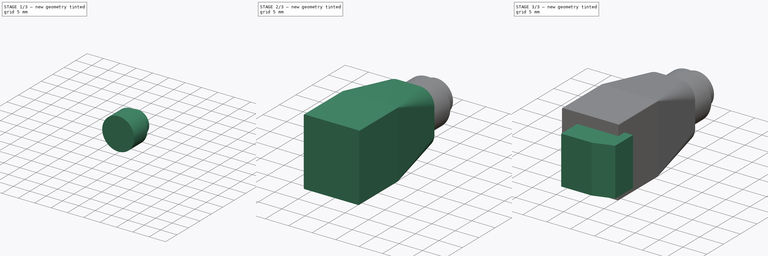
[diagram: build sequence overview — one tinted view per stage of 3, left to right]
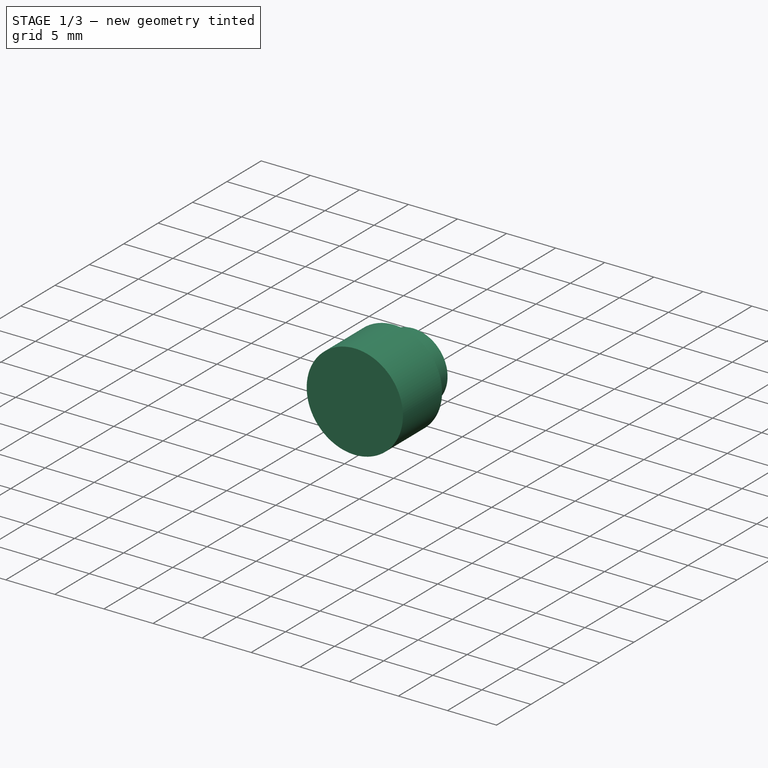
[diagram: stage 1 of 3 — iso view after this stage's code; geometry added in this stage tinted green]
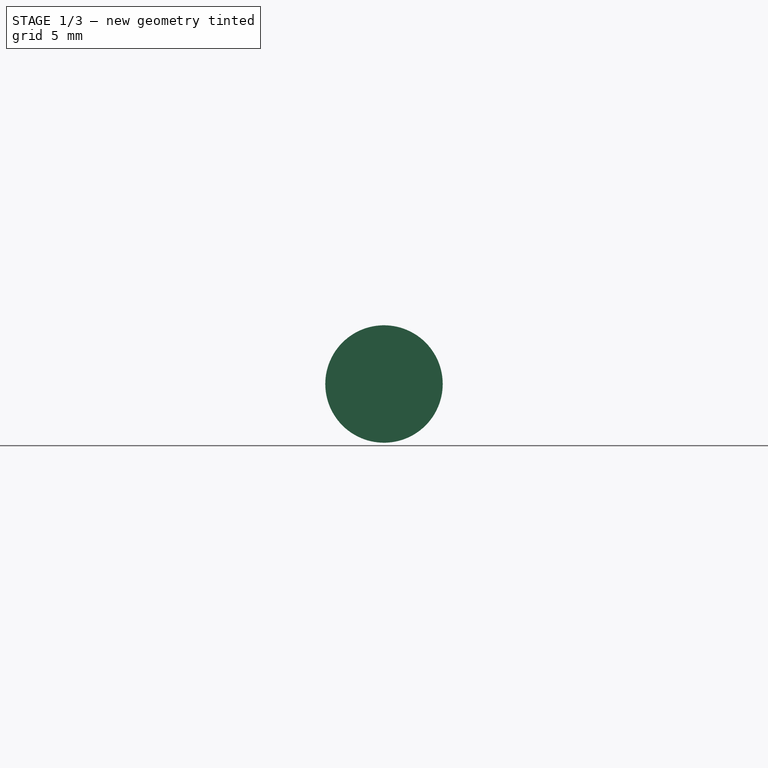
[diagram: stage 1 of 3 — front view after this stage's code; geometry added in this stage tinted green]
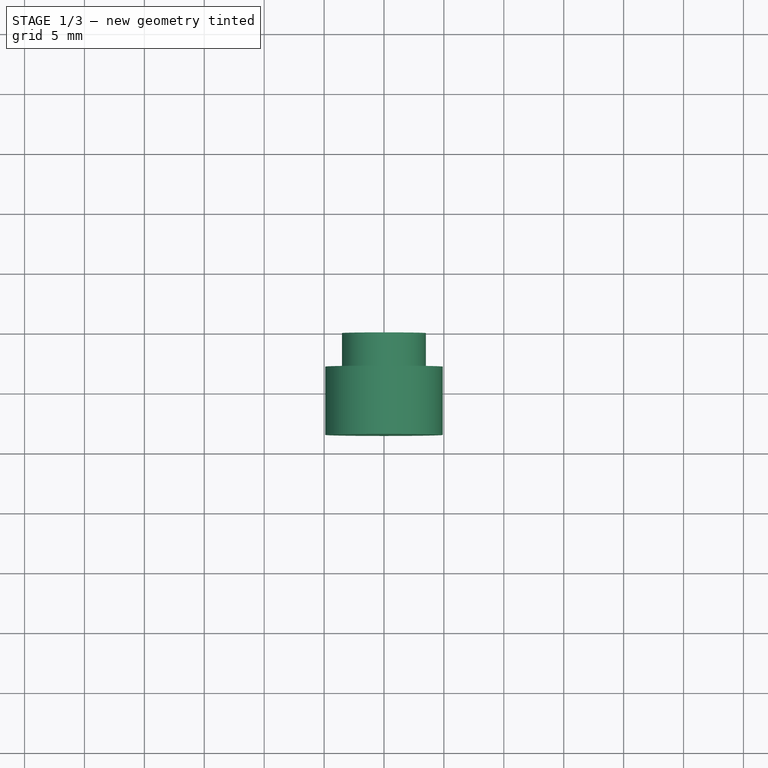
[diagram: stage 1 of 3 — top view after this stage's code; geometry added in this stage tinted green]
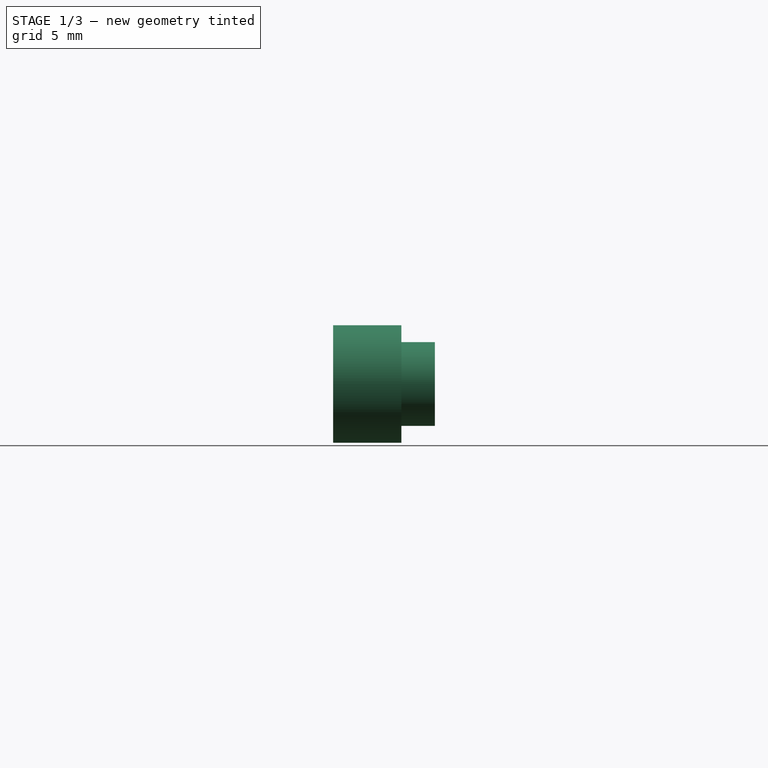
[diagram: stage 1 of 3 — right view after this stage's code; geometry added in this stage tinted green]
FCSTD DOCUMENT  (FreeCAD 0.22R36807 (Git))
Label: 12V DC Adapter Plug
License: Creative Commons Attribution 4.0
LicenseURL: https://creativecommons.org/licenses/by/4.0/
objects: Sketcher::SketchObject×7, PartDesign::Pad×4, PartDesign::AdditiveLoft×2, PartDesign::Body×1
note: 20 computed .brp shape members not serialized (recipe doc carries the construction recipe); baked Part::Feature solids carry a one-line shape summary decoded from their .brp

FEATURE [Sketcher::SketchObject] Sketch
  AttachmentSupport = -> [XZ_Plane]
  FullyConstrained = true
  MapMode = 5
  Placement = pos=(0,0,0) rot=(1,0,0;1.5708rad)
  sketch-geometry (2):
    g0: Circle CenterX=0 CenterY=0 CenterZ=0 NormalX=0 NormalY=0 NormalZ=1 AngleXU=0 Radius=3.5
    g1: Circle CenterX=0 CenterY=0 CenterZ=0 NormalX=0 NormalY=0 NormalZ=1 AngleXU=0 Radius=3.25
  constraints (4):
    c: Radius(g0) = 3.5
    c: Coincident(g0,g-1)
    c: Radius(g1) = 3.25
    c: Coincident(g1,g0)
FEATURE [PartDesign::Pad] Pad  label="Pad1"
  Direction = (0,-1,2e-16)
  Length = 2.8
  Length2 = 10
  Placement = pos=(0,0,0) rot=(1,0,0;1.5708rad)
  Profile = -> Sketch
  ReferenceAxis = -> Sketch [N_Axis]
  Suppressed = false
  Type = 0
FEATURE [Sketcher::SketchObject] Sketch001
  AttachmentSupport = -> [Pad]
  FullyConstrained = true
  MapMode = 5
  Placement = pos=(0,-2.8,6e-16) rot=(1,0,0;1.5708rad)
  sketch-geometry (1):
    g0: Circle CenterX=0 CenterY=0 CenterZ=0 NormalX=0 NormalY=0 NormalZ=1 AngleXU=0 Radius=4.9
  constraints (2):
    c: Radius(g0) = 4.9
    c: Coincident(g0,g-1)
FEATURE [PartDesign::Pad] Pad001  label="Pad2"
  BaseFeature = -> Pad
  Direction = (0,-1,2e-16)
  Length = 5.7
  Length2 = 10
  Placement = pos=(0,0,0) rot=(1,0,0;1.5708rad)
  Profile = -> Sketch001
  ReferenceAxis = -> Sketch001 [N_Axis]
  Suppressed = false
  Type = 0
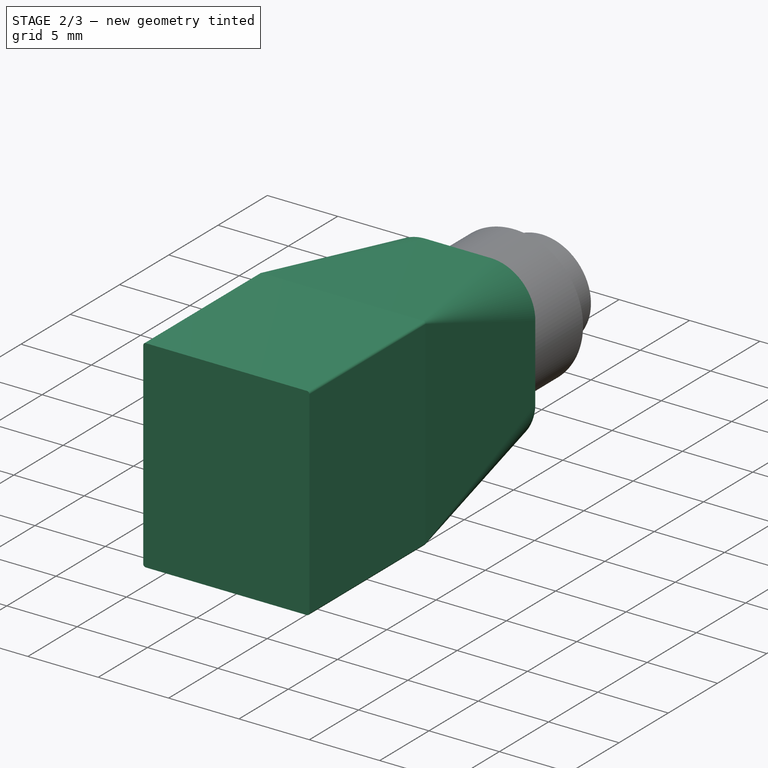
[diagram: stage 2 of 3 — iso view after this stage's code; geometry added in this stage tinted green]
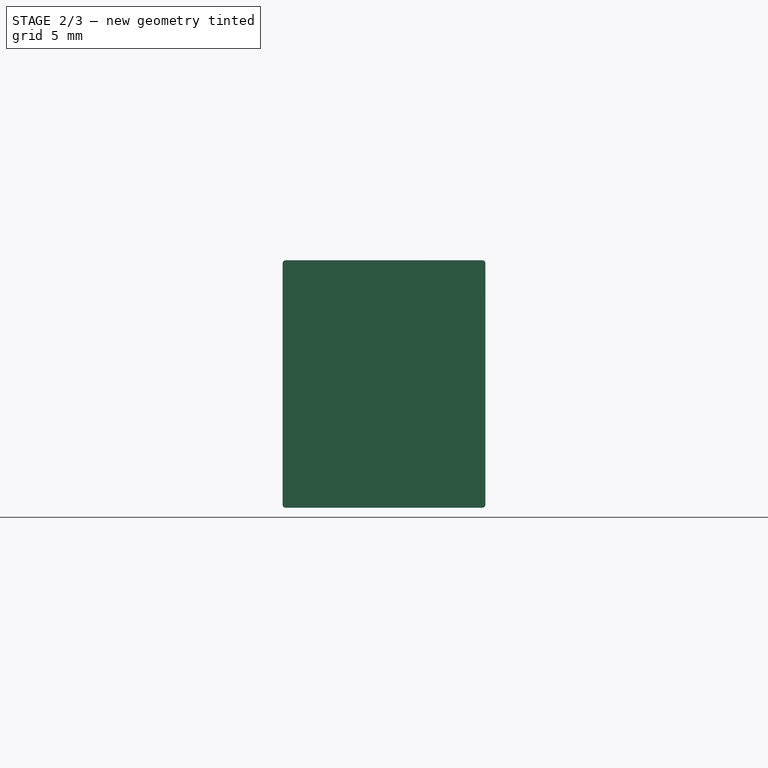
[diagram: stage 2 of 3 — front view after this stage's code; geometry added in this stage tinted green]
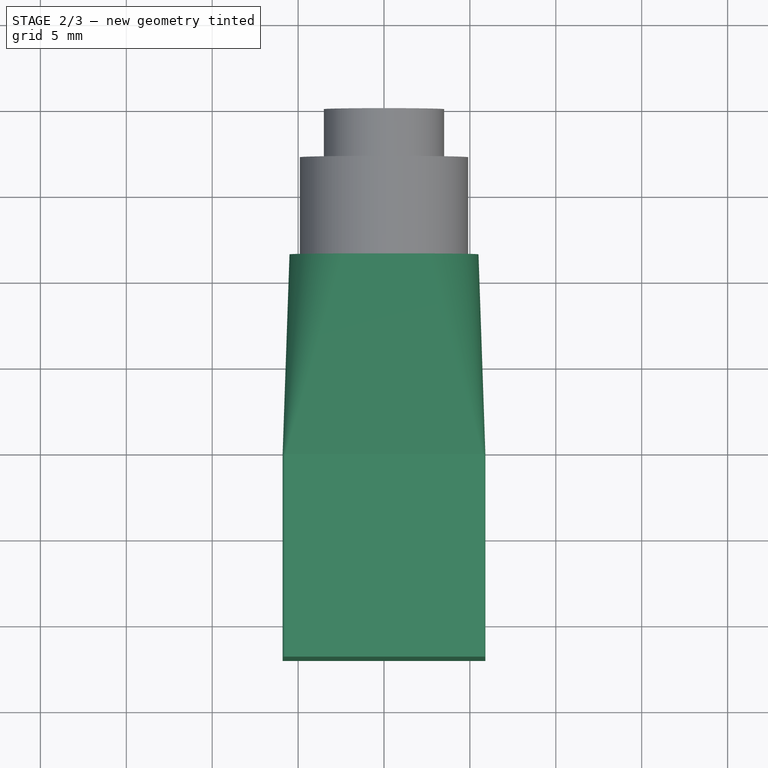
[diagram: stage 2 of 3 — top view after this stage's code; geometry added in this stage tinted green]
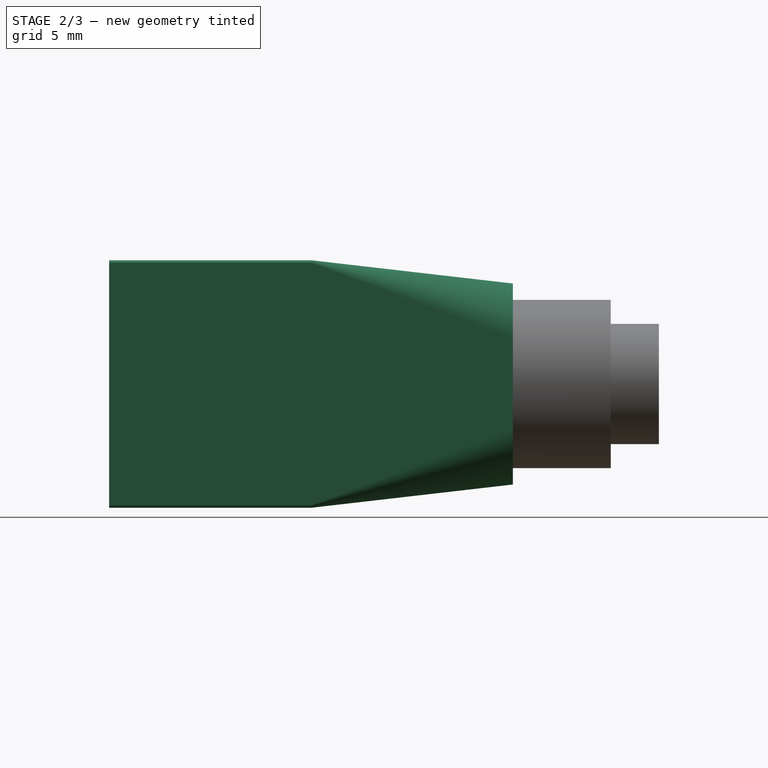
[diagram: stage 2 of 3 — right view after this stage's code; geometry added in this stage tinted green]
FEATURE [Sketcher::SketchObject] Sketch002
  AttachmentOffset = pos=(0,0,8.5) rot=(0,0,1;0rad)
  AttachmentSupport = -> [XZ_Plane]
  FullyConstrained = false
  MapMode = 5
  Placement = pos=(0,-8.5,1.9e-15) rot=(1,0,0;1.5708rad)
  expr: .AttachmentOffset.Base.z = <<Pad1>>.Length + <<Pad2>>.Length
  sketch-geometry (10):
    g0: LineSegment StartX=-5.5 StartY=2.6682 StartZ=0 EndX=-5.5 EndY=-2.6682 EndZ=0
    g1: LineSegment StartX=-2.3182 StartY=-5.85 StartZ=0 EndX=2.3182 EndY=-5.85 EndZ=0
    g2: LineSegment StartX=5.5 StartY=-2.6682 StartZ=0 EndX=5.5 EndY=2.6682 EndZ=0
    g3: LineSegment StartX=2.3182 StartY=5.85 StartZ=0 EndX=-2.3182 EndY=5.85 EndZ=0
    g4: ArcOfCircle CenterX=-2.3182 CenterY=2.6682 CenterZ=0 NormalX=0 NormalY=0 NormalZ=1 AngleXU=0 Radius=3.1818 StartAngle=1.5708 EndAngle=3.14159
    g5: ArcOfCircle CenterX=-2.3182 CenterY=-2.6682 CenterZ=0 NormalX=0 NormalY=0 NormalZ=1 AngleXU=0 Radius=3.1818 StartAngle=3.14159 EndAngle=4.71239
    g6: ArcOfCircle CenterX=2.3182 CenterY=-2.6682 CenterZ=0 NormalX=0 NormalY=0 NormalZ=1 AngleXU=0 Radius=3.1818 StartAngle=4.71239 EndAngle=6.28319
    g7: ArcOfCircle CenterX=2.3182 CenterY=2.6682 CenterZ=0 NormalX=0 NormalY=0 NormalZ=1 AngleXU=0 Radius=3.1818 StartAngle=-9e-16 EndAngle=1.5708
    g8: GeomPoint X=-5.5 Y=5.85 Z=0
    g9: GeomPoint X=5.5 Y=-5.85 Z=0
  constraints (22):
    c: Tangent(g0,g4) = -1.5708
    c: Tangent(g0,g5) = -1.5708
    c: Tangent(g1,g5) = -1.5708
    c: Tangent(g1,g6) = -1.5708
    c: Tangent(g2,g6) = -1.5708
    c: Tangent(g2,g7) = -1.5708
    c: Tangent(g3,g7) = -1.5708
    c: Tangent(g3,g4) = -1.5708
    c: Vertical(g0)
    c: Vertical(g2)
    c: Horizontal(g1)
    c: Horizontal(g3)
    c: Equal(g4,g5)
    c: Equal(g5,g6)
    c: Equal(g6,g7)
    c: PointOnObject(g8,g0)
    c: PointOnObject(g8,g3)
    c: PointOnObject(g9,g1)
    c: PointOnObject(g9,g2)
    c: Distance(g0,g2) = 11
    c: Distance(g1,g3) = 11.7
    c: Symmetric(g7,g5,g-1)
FEATURE [Sketcher::SketchObject] Sketch003
  AttachmentOffset = pos=(0,0,20.2) rot=(0,0,1;0rad)
  AttachmentSupport = -> [XZ_Plane]
  FullyConstrained = false
  MapMode = 5
  Placement = pos=(0,-20.2,4.5e-15) rot=(1,0,0;1.5708rad)
  expr: .AttachmentOffset.Base.z = <<Pad1>>.Length + <<Pad2>>.Length + 11.7 mm
  sketch-geometry (10):
    g0: LineSegment StartX=-5.9 StartY=7.02844 StartZ=0 EndX=-5.9 EndY=-7.02844 EndZ=0
    g1: LineSegment StartX=-5.72844 StartY=-7.2 StartZ=0 EndX=5.72844 EndY=-7.2 EndZ=0
    g2: LineSegment StartX=5.9 StartY=-7.02844 StartZ=0 EndX=5.9 EndY=7.02844 EndZ=0
    g3: LineSegment StartX=5.72844 StartY=7.2 StartZ=0 EndX=-5.72844 EndY=7.2 EndZ=0
    g4: ArcOfCircle CenterX=-5.72844 CenterY=7.02844 CenterZ=0 NormalX=0 NormalY=0 NormalZ=1 AngleXU=0 Radius=0.171564 StartAngle=1.5708 EndAngle=3.14159
    g5: ArcOfCircle CenterX=-5.72844 CenterY=-7.02844 CenterZ=0 NormalX=0 NormalY=0 NormalZ=1 AngleXU=0 Radius=0.171564 StartAngle=3.14159 EndAngle=4.71239
    g6: ArcOfCircle CenterX=5.72844 CenterY=-7.02844 CenterZ=0 NormalX=0 NormalY=0 NormalZ=1 AngleXU=0 Radius=0.171564 StartAngle=4.71239 EndAngle=6.28319
    g7: ArcOfCircle CenterX=5.72844 CenterY=7.02844 CenterZ=0 NormalX=0 NormalY=0 NormalZ=1 AngleXU=0 Radius=0.171564 StartAngle=-3.8911e-12 EndAngle=1.5708
    g8: GeomPoint X=-5.9 Y=7.2 Z=0
    g9: GeomPoint X=5.9 Y=-7.2 Z=0
  constraints (22):
    c: Tangent(g0,g4) = -1.5708
    c: Tangent(g0,g5) = -1.5708
    c: Tangent(g1,g5) = -1.5708
    c: Tangent(g1,g6) = -1.5708
    c: Tangent(g2,g6) = -1.5708
    c: Tangent(g2,g7) = -1.5708
    c: Tangent(g3,g7) = -1.5708
    c: Tangent(g3,g4) = -1.5708
    c: Vertical(g0)
    c: Vertical(g2)
    c: Horizontal(g1)
    c: Horizontal(g3)
    c: Equal(g4,g5)
    c: Equal(g5,g6)
    c: Equal(g6,g7)
    c: PointOnObject(g8,g0)
    c: PointOnObject(g8,g3)
    c: PointOnObject(g9,g1)
    c: PointOnObject(g9,g2)
    c: Distance(g0,g2) = 11.8
    c: Distance(g1,g3) = 14.4
    c: Symmetric(g7,g5,g-1)
FEATURE [PartDesign::AdditiveLoft] AdditiveLoft
  BaseFeature = -> Pad001
  Closed = false
  Placement = pos=(0,0,0) rot=(1,0,0;1.5708rad)
  Profile = -> Sketch002
  Ruled = false
  Sections = -> [Sketch003]
  Suppressed = false
FEATURE [PartDesign::Pad] Pad002
  BaseFeature = -> AdditiveLoft
  Direction = (0,-1,3e-16)
  Length = 11.8
  Length2 = 10
  Placement = pos=(0,0,0) rot=(1,0,0;1.5708rad)
  Profile = -> AdditiveLoft [Face11]
  Suppressed = false
  Type = 0
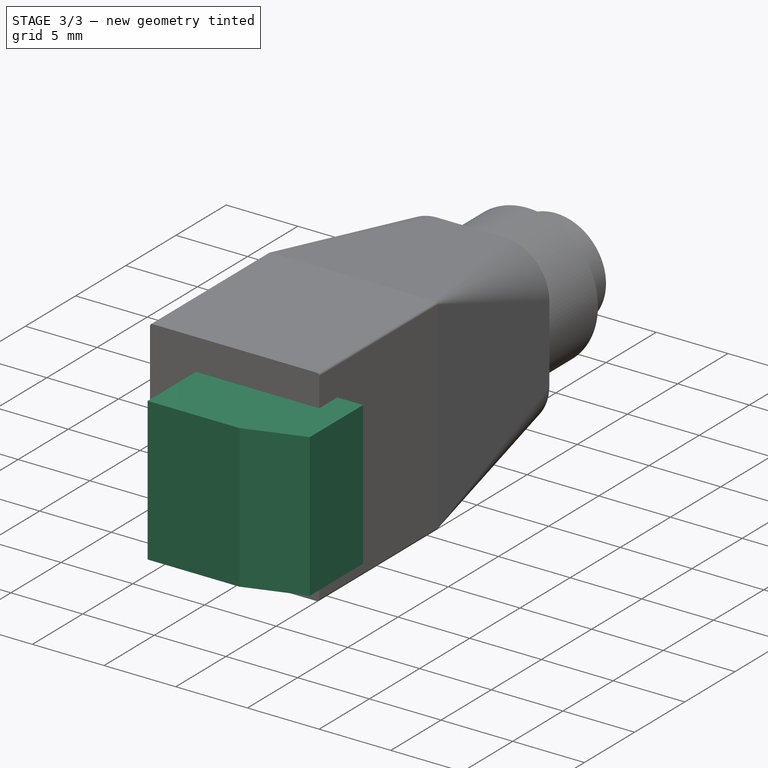
[diagram: stage 3 of 3 — iso view after this stage's code; geometry added in this stage tinted green]
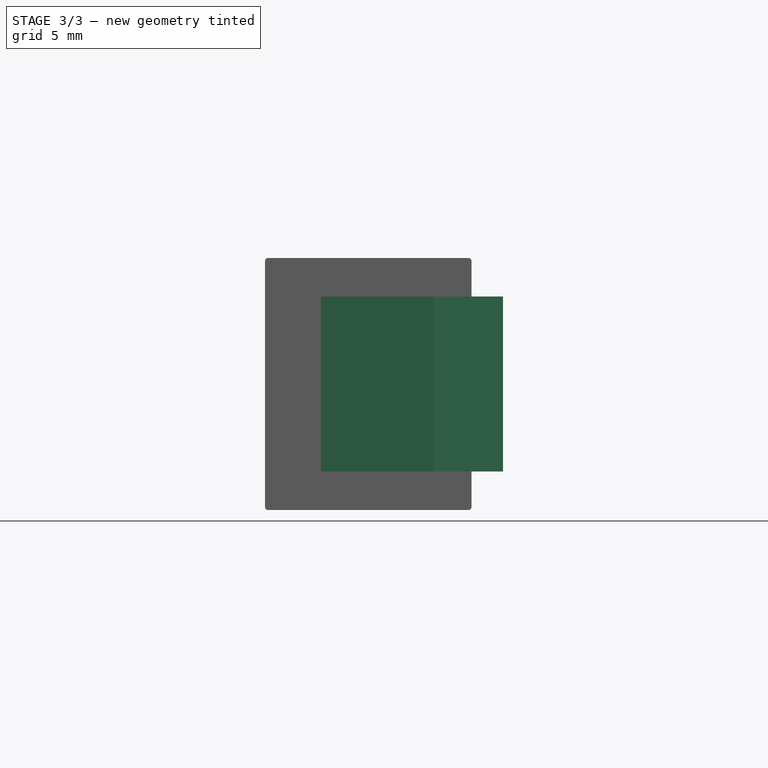
[diagram: stage 3 of 3 — front view after this stage's code; geometry added in this stage tinted green]
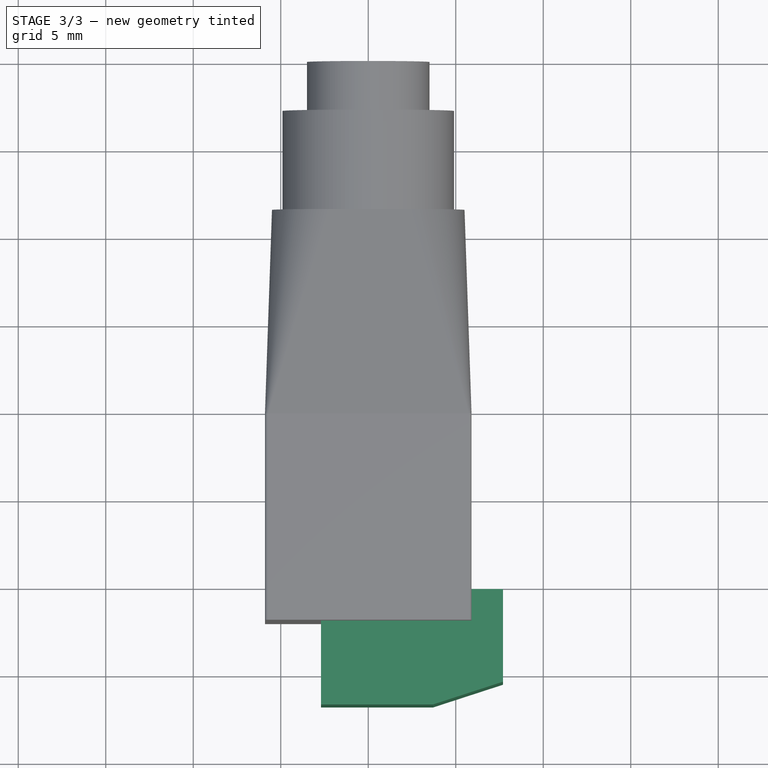
[diagram: stage 3 of 3 — top view after this stage's code; geometry added in this stage tinted green]
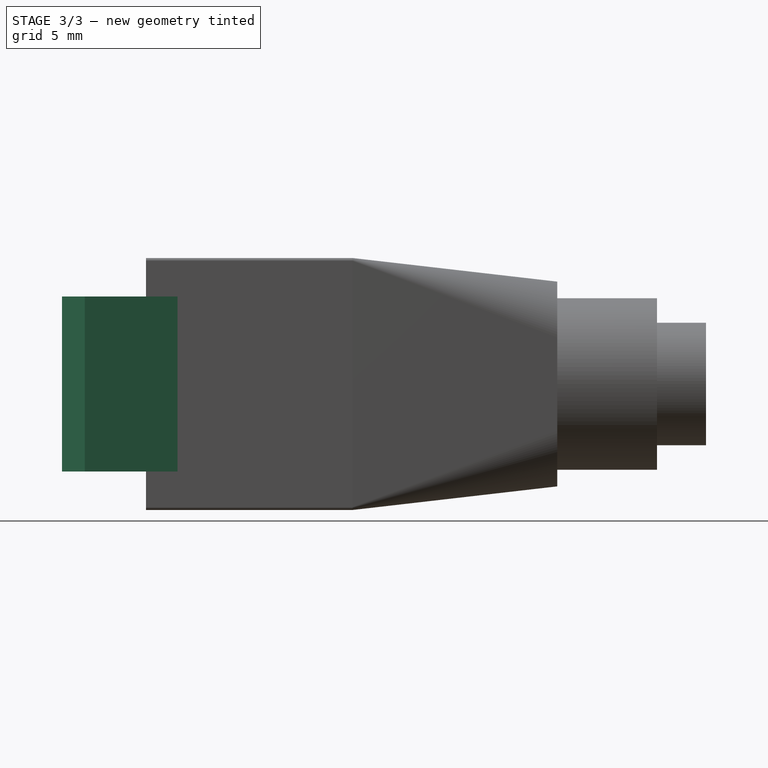
[diagram: stage 3 of 3 — right view after this stage's code; geometry added in this stage tinted green]
FEATURE [Sketcher::SketchObject] Sketch004
  AttachmentOffset = pos=(0,0,-2.7) rot=(0,0,1;0rad)
  AttachmentSupport = -> [YZ_Plane]
  FullyConstrained = true
  MapMode = 5
  Placement = pos=(-2.7,0,0) rot=(0.57735,0.57735,0.57735;2.0944rad)
  expr: Constraints[10] = <<Pad1>>.Length + <<Pad2>>.Length + 11.7 mm + 11.8 mm - 1.8 mm
  sketch-geometry (4):
    g0: LineSegment StartX=-36.8 StartY=5 StartZ=0 EndX=-36.8 EndY=-5 EndZ=0
    g1: LineSegment StartX=-36.8 StartY=-5 StartZ=0 EndX=-30.2 EndY=-5 EndZ=0
    g2: LineSegment StartX=-30.2 StartY=-5 StartZ=0 EndX=-30.2 EndY=5 EndZ=0
    g3: LineSegment StartX=-30.2 StartY=5 StartZ=0 EndX=-36.8 EndY=5 EndZ=0
  constraints (11):
    c: Coincident(g0,g1)
    c: Coincident(g1,g2)
    c: Coincident(g2,g3)
    c: Coincident(g3,g0)
    c: Vertical(g0)
    c: Horizontal(g1)
    c: Horizontal(g3)
    c: Distance(g0,g2) = 6.6
    c: Distance(g1,g3) = 10
    c: Symmetric(g1,g2,g-1)
    c: DistanceX(g1,g-1) = 30.2
FEATURE [PartDesign::Pad] Pad003
  BaseFeature = -> Pad002
  Direction = (1,0,0)
  Length = 6.4
  Length2 = 10
  Placement = pos=(0,0,0) rot=(1,0,0;1.5708rad)
  Profile = -> Sketch004
  ReferenceAxis = -> Sketch004 [N_Axis]
  Suppressed = false
  Type = 0
FEATURE [Sketcher::SketchObject] Sketch005
  AttachmentSupport = -> [Pad003]
  ExternalGeometry = -> [Sketch004]
  FullyConstrained = true
  MapMode = 5
  Placement = pos=(3.7,0,0) rot=(0.707107,0,0.707107;3.14159rad)
  sketch-geometry (4):
    g0: LineSegment StartX=5 StartY=36.8 StartZ=0 EndX=5 EndY=30.2 EndZ=0
    g1: LineSegment StartX=5 StartY=30.2 StartZ=0 EndX=-5 EndY=30.2 EndZ=0
    g2: LineSegment StartX=-5 StartY=30.2 StartZ=0 EndX=-5 EndY=36.8 EndZ=0
    g3: LineSegment StartX=-5 StartY=36.8 StartZ=0 EndX=5 EndY=36.8 EndZ=0
  constraints (10):
    c: Coincident(g0,g1)
    c: Coincident(g1,g2)
    c: Coincident(g2,g3)
    c: Coincident(g3,g0)
    c: Vertical(g0)
    c: Vertical(g2)
    c: Horizontal(g1)
    c: Horizontal(g3)
    c: Coincident(g0,g-3)
    c: Coincident(g1,g-4)
FEATURE [Sketcher::SketchObject] Sketch006
  AttachmentOffset = pos=(0,0,4) rot=(0,0,1;0rad)
  AttachmentSupport = -> [Pad003]
  ExternalGeometry = -> [Sketch004]
  FullyConstrained = false
  MapMode = 5
  Placement = pos=(7.7,0,-9e-16) rot=(0.707107,0,0.707107;3.14159rad)
  sketch-geometry (4):
    g0: LineSegment StartX=5 StartY=35.5 StartZ=0 EndX=5 EndY=30.2 EndZ=0
    g1: LineSegment StartX=5 StartY=30.2 StartZ=0 EndX=-5 EndY=30.2 EndZ=0
    g2: LineSegment StartX=-5 StartY=30.2 StartZ=0 EndX=-5 EndY=35.5 EndZ=0
    g3: LineSegment StartX=-5 StartY=35.5 StartZ=0 EndX=5 EndY=35.5 EndZ=0
  constraints (10):
    c: Coincident(g0,g1)
    c: Coincident(g2,g3)
    c: Vertical(g0)
    c: Vertical(g2)
    c: Horizontal(g1)
    c: Horizontal(g3)
    c: Coincident(g3,g0)
    c: DistanceY(g0,g0) = 5.3
    c: Coincident(g2,g1)
    c: Coincident(g1,g-4)
FEATURE [PartDesign::AdditiveLoft] AdditiveLoft001
  BaseFeature = -> Pad003
  Closed = false
  Placement = pos=(0,0,0) rot=(1,0,0;1.5708rad)
  Profile = -> Sketch005
  Ruled = false
  Sections = -> [Sketch006]
  Suppressed = false
FEATURE [PartDesign::Body] Body
  Group = -> [Sketch,Pad,Sketch001,Pad001,Sketch002,Sketch003,AdditiveLoft,Pad002,Sketch004,Pad003,Sketch005,Sketch006,AdditiveLoft001]
  Origin = -> Origin
  Tip = -> AdditiveLoft001
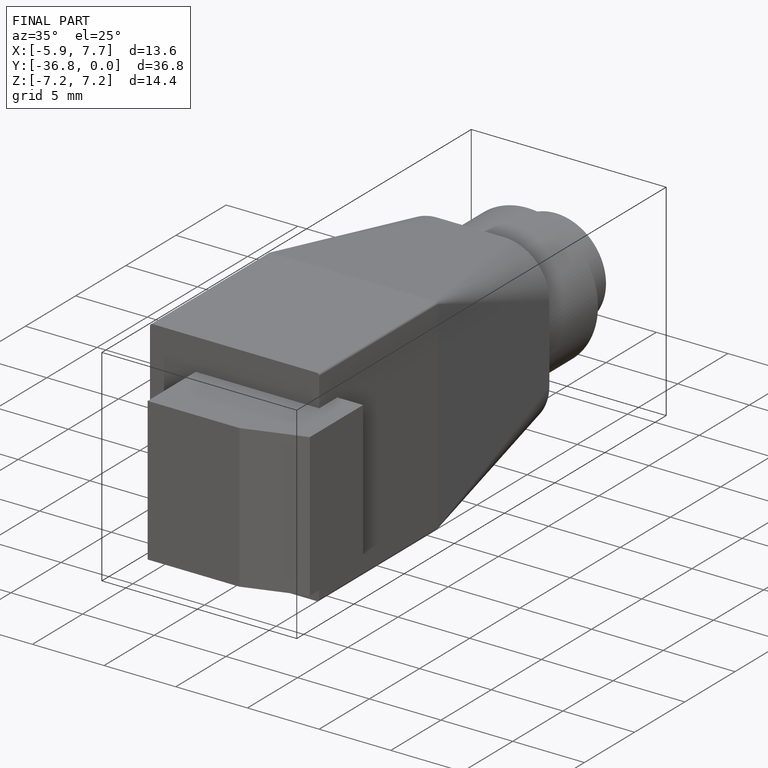
[diagram: finished part — iso view with bounding-box wireframe]
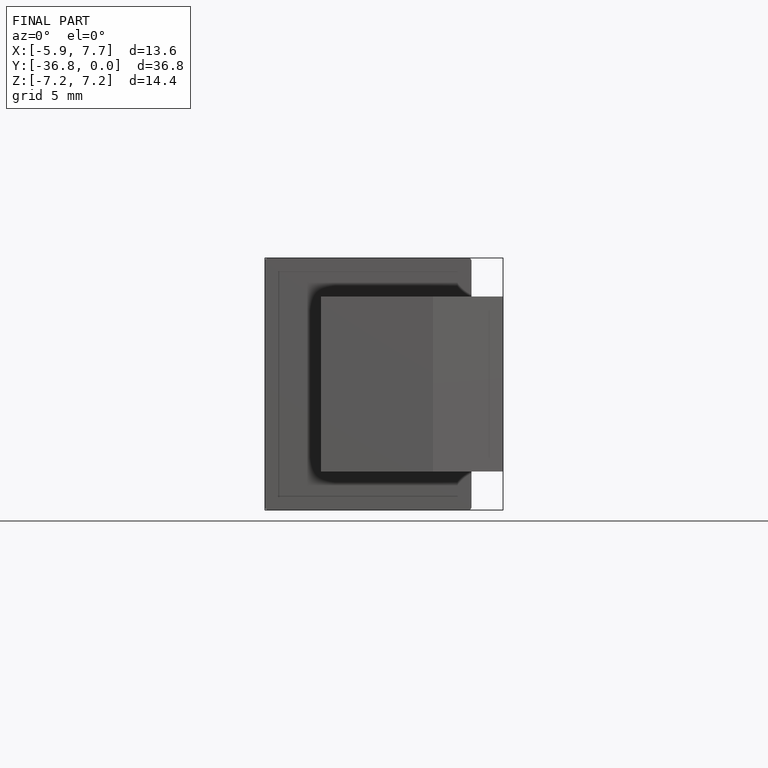
[diagram: finished part — front view with bounding-box wireframe]
